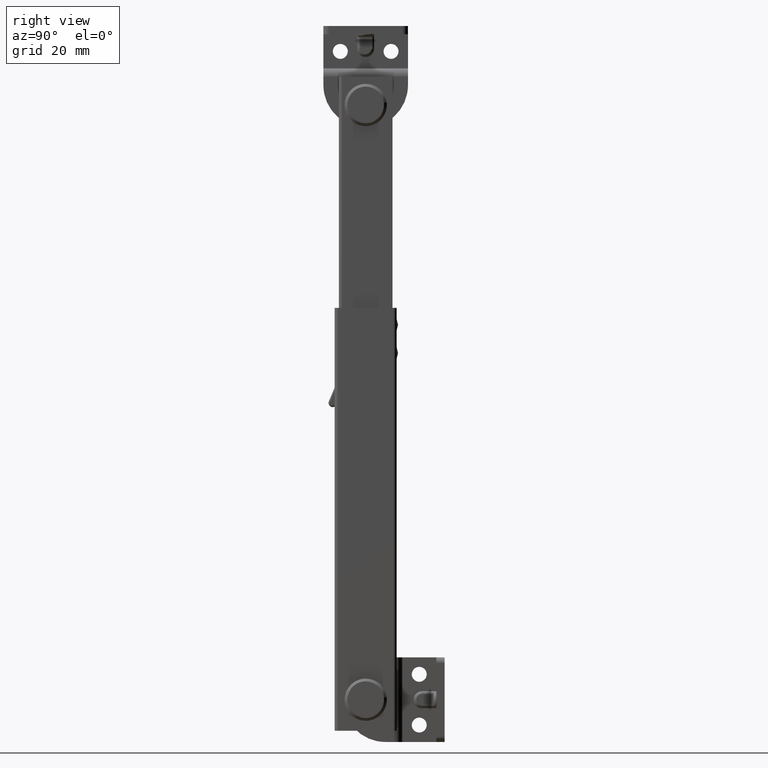
[diagram: clean part render]
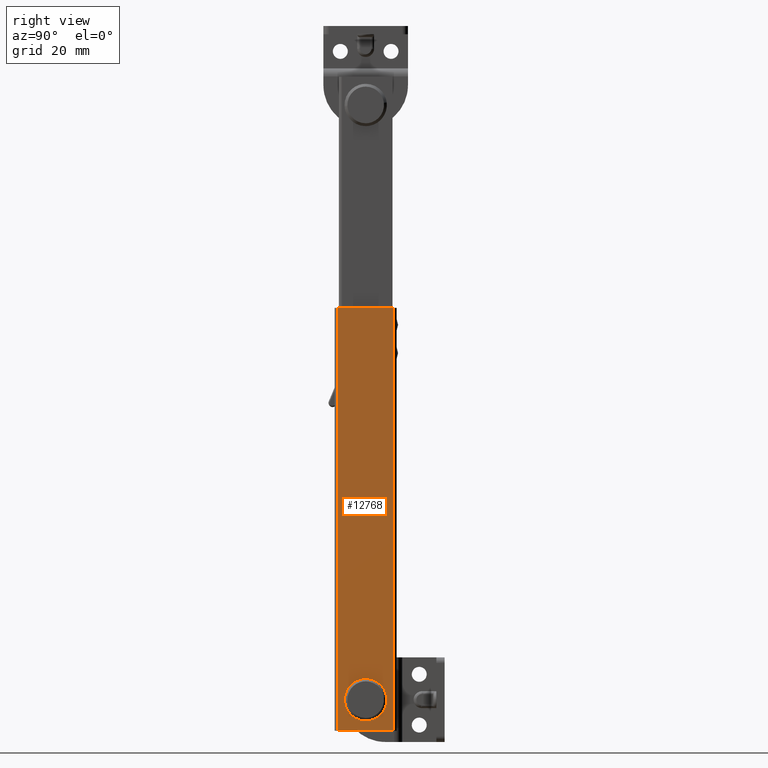
[diagram: same view with one face highlighted and labeled with its STEP entity id]
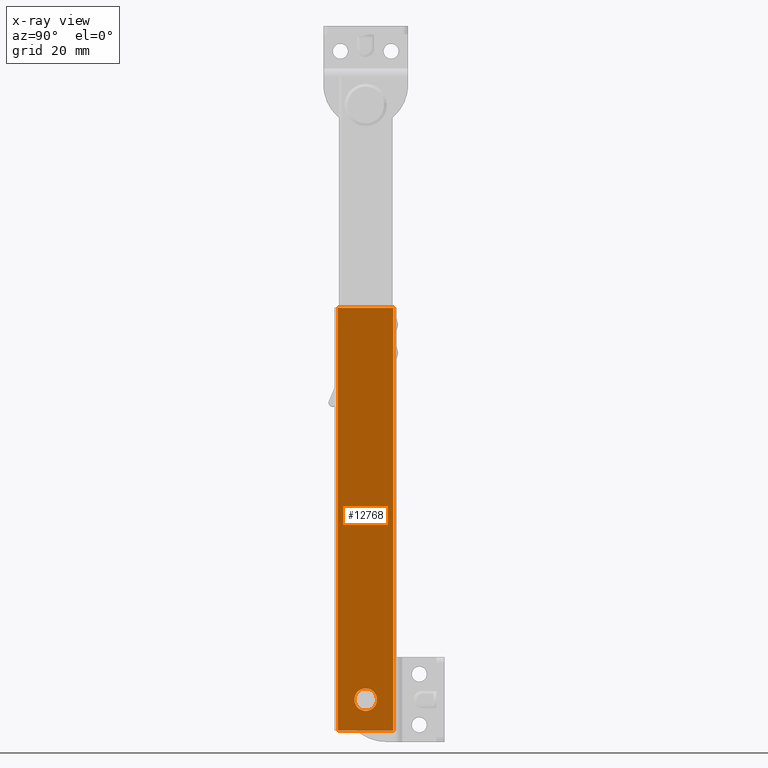
[diagram: x-ray of the same camera — body ghosted, the highlighted face saturated]
A machine part, right view. The second image highlights one B-rep face of the part: STEP entity #12768.
The next image is the same camera in x-ray: the body ghosted, the highlighted face saturated — about 0% of this face is hidden behind the body in this view.
In plain terms, the highlighted face is a freeform B-spline surface patch.
Its self-contained STEP definition (entity closure, byte-faithful):
#11405=CARTESIAN_POINT('',(4.163336E-017,-3.999847692236239,0.034906144336300));
#11406=VERTEX_POINT('',#11405);
#11412=CARTESIAN_POINT('',(0.0,0.0,-4.0));
#11413=VERTEX_POINT('',#11412);
#11414=CARTESIAN_POINT('',(4.163336E-017,-3.999847692236239,0.034906144336300));
#11415=CARTESIAN_POINT('',(0.0,-4.0,0.017453405625744));
#11416=CARTESIAN_POINT('',(0.0,-4.0,0.0));
#11417=CARTESIAN_POINT('',(0.0,-4.000000000000000,-4.000000000000000));
#11418=CARTESIAN_POINT('',(0.0,0.0,-4.0));
#11426=(BOUNDED_CURVE()B_SPLINE_CURVE(2,(#11414,#11415,#11416,#11417,#11418),.UNSPECIFIED.,.F.,.U.)B_SPLINE_CURVE_WITH_KNOTS((3,2,3),(0.248460105458671,0.250000000000000,0.500000000000000),.UNSPECIFIED.)CURVE()GEOMETRIC_REPRESENTATION_ITEM()RATIONAL_B_SPLINE_CURVE((0.996414027622873,0.998195901324628,1.0,0.707106781186548,1.0))REPRESENTATION_ITEM(''));
#11427=EDGE_CURVE('',#11406,#11413,#11426,.T.);
#11429=CARTESIAN_POINT('',(4.169633E-017,3.969064855041468,-0.496512010403221));
#11430=VERTEX_POINT('',#11429);
#11431=CARTESIAN_POINT('',(0.0,0.0,-4.0));
#11432=CARTESIAN_POINT('',(0.0,3.530794396864433,-4.0));
#11433=CARTESIAN_POINT('',(4.169633E-017,3.969064855041468,-0.496512010403220));
#11441=(BOUNDED_CURVE()B_SPLINE_CURVE(2,(#11431,#11432,#11433),.UNSPECIFIED.,.F.,.U.)B_SPLINE_CURVE_WITH_KNOTS((3,3),(0.500000000000000,0.728526070852209),.UNSPECIFIED.)CURVE()GEOMETRIC_REPRESENTATION_ITEM()RATIONAL_B_SPLINE_CURVE((1.0,0.732265054101222,0.954005429931055))REPRESENTATION_ITEM(''));
#11442=EDGE_CURVE('',#11413,#11430,#11441,.T.);
#11492=CARTESIAN_POINT('',(0.0,0.0,4.0));
#11493=VERTEX_POINT('',#11492);
#11494=CARTESIAN_POINT('',(4.169633E-017,3.969064855041469,-0.496512010403221));
#11495=CARTESIAN_POINT('',(0.0,4.000000000000001,-0.249219712242275));
#11496=CARTESIAN_POINT('',(0.0,4.0,0.0));
#11497=CARTESIAN_POINT('',(0.0,4.000000000000000,4.000000000000000));
#11498=CARTESIAN_POINT('',(0.0,0.0,4.0));
#11506=(BOUNDED_CURVE()B_SPLINE_CURVE(2,(#11494,#11495,#11496,#11497,#11498),.UNSPECIFIED.,.F.,.U.)B_SPLINE_CURVE_WITH_KNOTS((3,2,3),(0.728526070852208,0.750000000000000,1.0),.UNSPECIFIED.)CURVE()GEOMETRIC_REPRESENTATION_ITEM()RATIONAL_B_SPLINE_CURVE((0.954005429931055,0.974841727085325,1.0,0.707106781186548,1.0))REPRESENTATION_ITEM(''));
#11507=EDGE_CURVE('',#11430,#11493,#11506,.T.);
#11509=CARTESIAN_POINT('',(0.0,0.0,4.0));
#11510=CARTESIAN_POINT('',(0.0,-3.965244837734663,4.0));
#11511=CARTESIAN_POINT('',(4.163336E-017,-3.999847692236239,0.034906144336300));
#11519=(BOUNDED_CURVE()B_SPLINE_CURVE(2,(#11509,#11510,#11511),.UNSPECIFIED.,.F.,.U.)B_SPLINE_CURVE_WITH_KNOTS((3,3),(0.0,0.248460105458671),.UNSPECIFIED.)CURVE()GEOMETRIC_REPRESENTATION_ITEM()RATIONAL_B_SPLINE_CURVE((1.0,0.708910879861920,0.996414027622873))REPRESENTATION_ITEM(''));
#11520=EDGE_CURVE('',#11493,#11406,#11519,.T.);
#12253=CARTESIAN_POINT('',(0.0,-9.800003000000000,139.0));
#12254=VERTEX_POINT('',#12253);
#12268=CARTESIAN_POINT('',(0.000003000000003,9.799999000000000,139.0));
#12269=VERTEX_POINT('',#12268);
#12270=CARTESIAN_POINT('',(0.000003000000003,9.799999000000000,139.0));
#12271=CARTESIAN_POINT('',(0.0,-9.800003000000000,139.0));
#12272=QUASI_UNIFORM_CURVE('',1,(#12270,#12271),.UNSPECIFIED.,.F.,.U.);
#12273=EDGE_CURVE('',#12269,#12254,#12272,.T.);
#12423=CARTESIAN_POINT('',(0.000003000000003,9.799999000000000,-11.0));
#12424=VERTEX_POINT('',#12423);
#12438=CARTESIAN_POINT('',(0.0,-9.800003000000000,-11.0));
#12439=VERTEX_POINT('',#12438);
#12440=CARTESIAN_POINT('',(0.000003000000003,9.799999000000000,-11.0));
#12441=CARTESIAN_POINT('',(0.0,-9.800003000000000,-11.0));
#12442=QUASI_UNIFORM_CURVE('',1,(#12440,#12441),.UNSPECIFIED.,.F.,.U.);
#12443=EDGE_CURVE('',#12424,#12439,#12442,.T.);
#12512=CARTESIAN_POINT('',(0.0,-9.800003000000000,-11.0));
#12513=CARTESIAN_POINT('',(0.0,-9.800003000000000,139.0));
#12514=QUASI_UNIFORM_CURVE('',1,(#12512,#12513),.UNSPECIFIED.,.F.,.U.);
#12515=EDGE_CURVE('',#12439,#12254,#12514,.T.);
#12535=CARTESIAN_POINT('',(0.000003000000003,9.799999000000000,-11.0));
#12536=CARTESIAN_POINT('',(0.000003000000003,9.799999000000000,139.0));
#12537=QUASI_UNIFORM_CURVE('',1,(#12535,#12536),.UNSPECIFIED.,.F.,.U.);
#12538=EDGE_CURVE('',#12424,#12269,#12537,.T.);
#12751=CARTESIAN_POINT('',(0.0,-10.779023245902190,-18.492499709270898));
#12752=CARTESIAN_POINT('',(0.0,-10.779023245902190,146.492503732584400));
#12753=CARTESIAN_POINT('',(0.0,10.779019596377539,-18.492499709270898));
#12754=CARTESIAN_POINT('',(0.0,10.779019596377539,146.492503732584400));
#12755=B_SPLINE_SURFACE_WITH_KNOTS('',1,1,((#12751,#12753),(#12752,#12754)),.UNSPECIFIED.,.F.,.F.,.U.,(2,2),(2,2),(0.0,164.985003441855300),(0.0,21.558042842279729),.UNSPECIFIED.);
#12756=ORIENTED_EDGE('',*,*,#12273,.T.);
#12757=ORIENTED_EDGE('',*,*,#12515,.F.);
#12758=ORIENTED_EDGE('',*,*,#12443,.F.);
#12759=ORIENTED_EDGE('',*,*,#12538,.T.);
#12760=EDGE_LOOP('',(#12756,#12757,#12758,#12759));
#12761=FACE_OUTER_BOUND('',#12760,.T.);
#12762=ORIENTED_EDGE('',*,*,#11520,.F.);
#12763=ORIENTED_EDGE('',*,*,#11507,.F.);
#12764=ORIENTED_EDGE('',*,*,#11442,.F.);
#12765=ORIENTED_EDGE('',*,*,#11427,.F.);
#12766=EDGE_LOOP('',(#12762,#12763,#12764,#12765));
#12767=FACE_BOUND('',#12766,.T.);
#12768=ADVANCED_FACE('',(#12761,#12767),#12755,.F.);